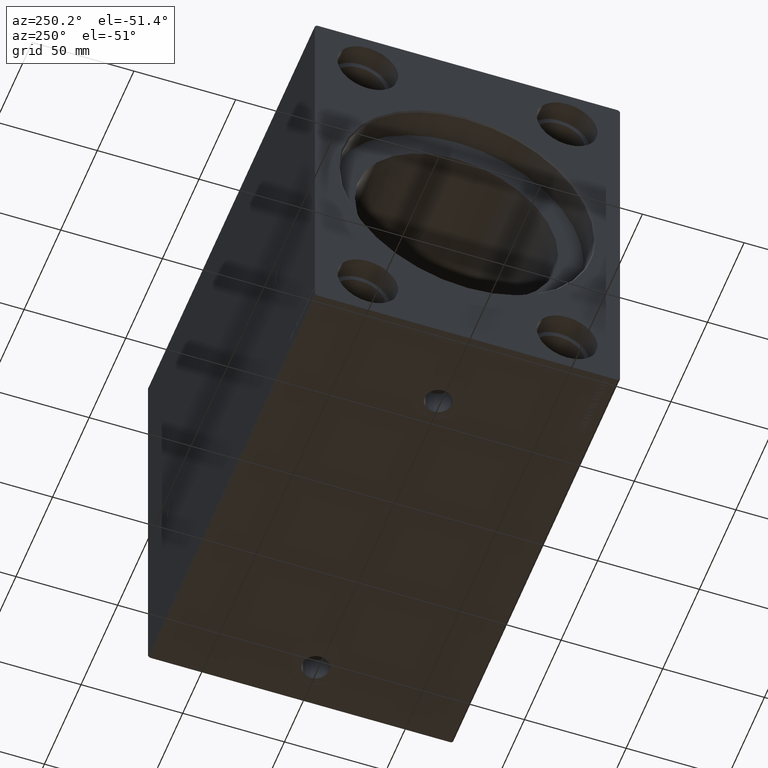
[diagram: clean part render]
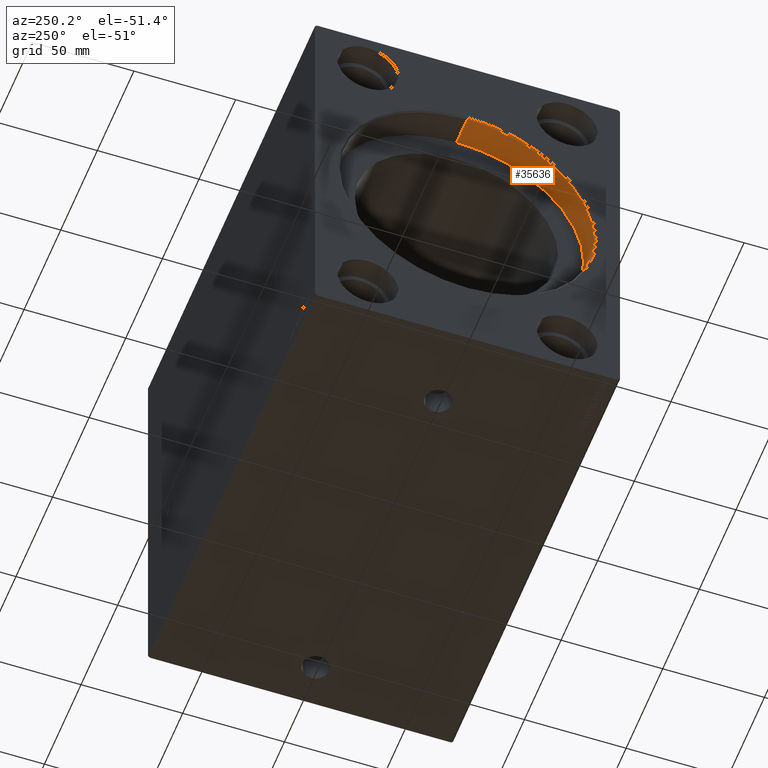
[diagram: same view with one face highlighted and labeled with its STEP entity id]
A machine part, auxiliary view. The second image highlights one B-rep face of the part: STEP entity #35636.
In plain terms, the highlighted cylindrical surface (partial cylindrical patch) has radius 62.5 mm, axis along (-1, -0, -0).
Its self-contained STEP definition (entity closure, byte-faithful):
#768 = LINE ( 'NONE', #10021, #30368 ) ;
#1075 = AXIS2_PLACEMENT_3D ( 'NONE', #12151, #8910, #9332 ) ;
#4536 = DIRECTION ( 'NONE',  ( 0.000000000000000000, 0.000000000000000000, 1.000000000000000000 ) ) ;
#5341 = EDGE_CURVE ( 'NONE', #30508, #18459, #32198, .T. ) ;
#6426 = EDGE_LOOP ( 'NONE', ( #15814, #19279, #30560, #19318 ) ) ;
#6702 = CARTESIAN_POINT ( 'NONE',  ( 15.00000000000000000, 0.000000000000000000, 0.000000000000000000 ) ) ;
#7114 = DIRECTION ( 'NONE',  ( -1.000000000000000000, 0.000000000000000000, 0.000000000000000000 ) ) ;
#7507 = EDGE_CURVE ( 'NONE', #21396, #18459, #31296, .T. ) ;
#7956 = DIRECTION ( 'NONE',  ( -1.000000000000000000, -0.000000000000000000, -0.000000000000000000 ) ) ;
#8910 = DIRECTION ( 'NONE',  ( -1.000000000000000000, 0.000000000000000000, 0.000000000000000000 ) ) ;
#8986 = DIRECTION ( 'NONE',  ( -1.000000000000000000, -0.000000000000000000, -0.000000000000000000 ) ) ;
#9332 = DIRECTION ( 'NONE',  ( 0.000000000000000000, 0.000000000000000000, -1.000000000000000000 ) ) ;
#10021 = CARTESIAN_POINT ( 'NONE',  ( 15.00000000000000000, 7.654042494670957804E-15, -62.50000000000000000 ) ) ;
#11387 = AXIS2_PLACEMENT_3D ( 'NONE', #6702, #7114, #39780 ) ;
#12151 = CARTESIAN_POINT ( 'NONE',  ( 0.7000000000000548006, 0.000000000000000000, 0.000000000000000000 ) ) ;
#13984 = CARTESIAN_POINT ( 'NONE',  ( 15.00000000000000000, 7.654042494670957804E-15, -62.50000000000000000 ) ) ;
#15814 = ORIENTED_EDGE ( 'NONE', *, *, #34193, .F. ) ;
#18459 = VERTEX_POINT ( 'NONE', #25587 ) ;
#19279 = ORIENTED_EDGE ( 'NONE', *, *, #20315, .T. ) ;
#19318 = ORIENTED_EDGE ( 'NONE', *, *, #5341, .F. ) ;
#20315 = EDGE_CURVE ( 'NONE', #36417, #21396, #768, .T. ) ;
#20319 = DIRECTION ( 'NONE',  ( -1.000000000000000000, -0.000000000000000000, -0.000000000000000000 ) ) ;
#21396 = VERTEX_POINT ( 'NONE', #32066 ) ;
#22530 = CARTESIAN_POINT ( 'NONE',  ( 15.00000000000000000, 0.000000000000000000, 62.50000000000000000 ) ) ;
#23870 = FACE_OUTER_BOUND ( 'NONE', #6426, .T. ) ;
#25587 = CARTESIAN_POINT ( 'NONE',  ( 0.7000000000000548006, 0.000000000000000000, 62.50000000000000000 ) ) ;
#29137 = VECTOR ( 'NONE', #8986, 1000.000000000000000 ) ;
#30368 = VECTOR ( 'NONE', #20319, 1000.000000000000000 ) ;
#30508 = VERTEX_POINT ( 'NONE', #33893 ) ;
#30560 = ORIENTED_EDGE ( 'NONE', *, *, #7507, .T. ) ;
#30744 = CARTESIAN_POINT ( 'NONE',  ( 15.00000000000000000, 0.000000000000000000, 0.000000000000000000 ) ) ;
#31296 = CIRCLE ( 'NONE', #1075, 62.50000000000000000 ) ;
#31982 = AXIS2_PLACEMENT_3D ( 'NONE', #30744, #7956, #4536 ) ;
#32066 = CARTESIAN_POINT ( 'NONE',  ( 0.7000000000000548006, 7.654042494670957804E-15, -62.50000000000000000 ) ) ;
#32198 = LINE ( 'NONE', #22530, #29137 ) ;
#33893 = CARTESIAN_POINT ( 'NONE',  ( 15.00000000000000000, 0.000000000000000000, 62.50000000000000000 ) ) ;
#34193 = EDGE_CURVE ( 'NONE', #36417, #30508, #39503, .T. ) ;
#35636 = ADVANCED_FACE ( 'NONE', ( #23870 ), #37399, .F. ) ;
#36417 = VERTEX_POINT ( 'NONE', #13984 ) ;
#37399 = CYLINDRICAL_SURFACE ( 'NONE', #31982, 62.50000000000000000 ) ;
#39503 = CIRCLE ( 'NONE', #11387, 62.50000000000000000 ) ;
#39780 = DIRECTION ( 'NONE',  ( 0.000000000000000000, 0.000000000000000000, 1.000000000000000000 ) ) ;